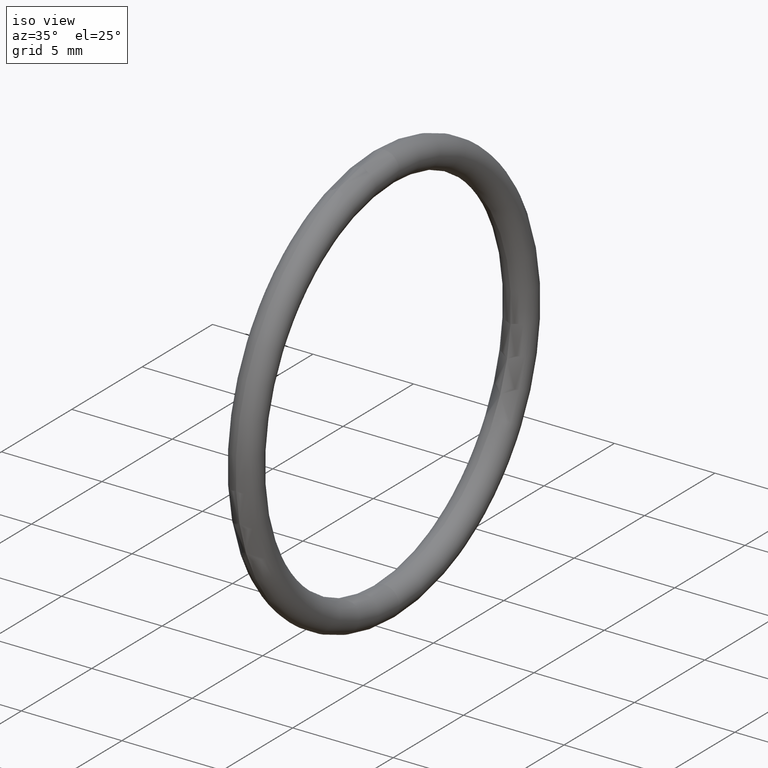
[diagram: clean part render]
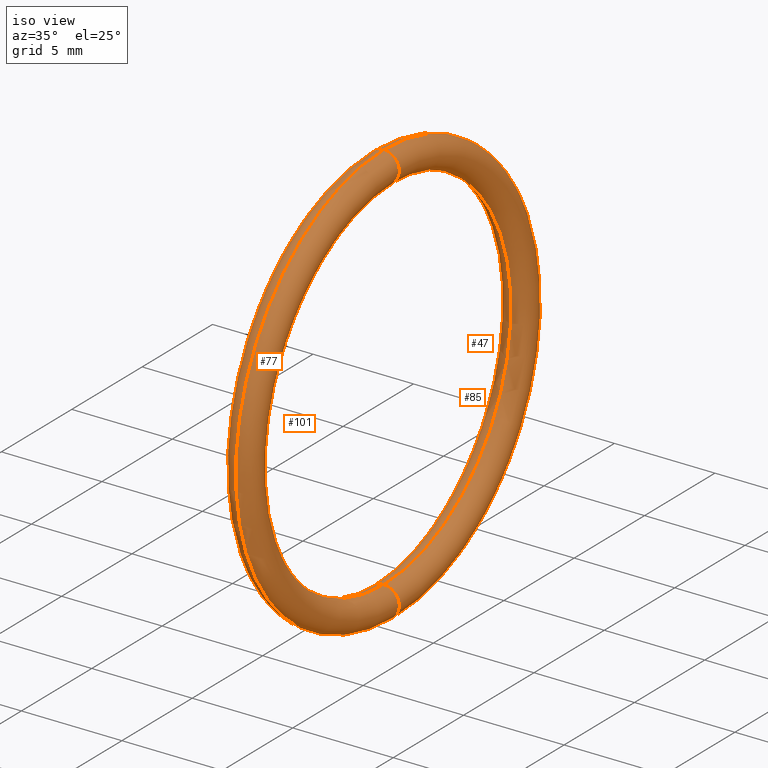
[diagram: same view with one multi-face feature highlighted, each face labeled with its STEP entity id]
A machine part, iso view. The highlighted faces form ONE feature: a constant-radius fillet chain: 4 tangent blend faces with common blend radius 0.762 mm. The faces share edges in the B-rep.
Their STEP definitions:
[1] entity #47 (Torus):
#5 = CARTESIAN_POINT ( 'NONE',  ( 0.1000000000000000600, 0.0000000000000000000, 0.3850000000000000100 ) ) ;
#6 = DIRECTION ( 'NONE',  ( 0.0000000000000000000, 0.0000000000000000000, 1.000000000000000000 ) ) ;
#7 = DIRECTION ( 'NONE',  ( -1.000000000000000000, 0.0000000000000000000, 0.0000000000000000000 ) ) ;
#8 = CARTESIAN_POINT ( 'NONE',  ( 0.1000000000000000600, 0.0000000000000000000, 0.0000000000000000000 ) ) ;
#9 = AXIS2_PLACEMENT_3D ( 'NONE', #8, #7, #6 ) ;
#10 = CIRCLE ( 'NONE', #9, 0.4150000000000000400 ) ;
#23 = DIRECTION ( 'NONE',  ( 0.0000000000000000000, -1.224646799147352200E-016, 1.000000000000000000 ) ) ;
#24 = DIRECTION ( 'NONE',  ( 0.0000000000000000000, 1.000000000000000000, 1.224646799147353200E-016 ) ) ;
#25 = CARTESIAN_POINT ( 'NONE',  ( 0.1000000000000000600, 4.714890176717309300E-017, -0.3850000000000000100 ) ) ;
#26 = AXIS2_PLACEMENT_3D ( 'NONE', #25, #24, #23 ) ;
#27 = CIRCLE ( 'NONE', #26, 0.03000000000000002300 ) ;
#28 = DIRECTION ( 'NONE',  ( 0.0000000000000000000, 0.0000000000000000000, -1.000000000000000000 ) ) ;
#29 = DIRECTION ( 'NONE',  ( 0.0000000000000000000, -1.000000000000000000, 0.0000000000000000000 ) ) ;
#30 = AXIS2_PLACEMENT_3D ( 'NONE', #5, #29, #28 ) ;
#31 = CIRCLE ( 'NONE', #30, 0.03000000000000002300 ) ;
#39 = DIRECTION ( 'NONE',  ( 0.0000000000000000000, 0.0000000000000000000, 1.000000000000000000 ) ) ;
#40 = DIRECTION ( 'NONE',  ( -1.000000000000000000, 0.0000000000000000000, 0.0000000000000000000 ) ) ;
#41 = AXIS2_PLACEMENT_3D ( 'NONE', #87, #40, #39 ) ;
#42 = TOROIDAL_SURFACE ( 'NONE', #41, 0.3850000000000000100, 0.03000000000000000900 ) ;
#43 = CARTESIAN_POINT ( 'NONE',  ( 0.1000000000000000600, 0.0000000000000000000, 0.3549999999999999800 ) ) ;
#44 = VERTEX_POINT ( 'NONE', #89 ) ;
#47 = ADVANCED_FACE ( 'NONE', ( #88 ), #42, .T. ) ;
#48 = ORIENTED_EDGE ( 'NONE', *, *, #91, .F. ) ;
#50 = VERTEX_POINT ( 'NONE', #43 ) ;
#52 = EDGE_LOOP ( 'NONE', ( #48, #92, #53, #54 ) ) ;
#53 = ORIENTED_EDGE ( 'NONE', *, *, #83, .T. ) ;
#54 = ORIENTED_EDGE ( 'NONE', *, *, #100, .T. ) ;
#60 = DIRECTION ( 'NONE',  ( 0.0000000000000000000, 0.0000000000000000000, 1.000000000000000000 ) ) ;
#61 = DIRECTION ( 'NONE',  ( -1.000000000000000000, 0.0000000000000000000, 0.0000000000000000000 ) ) ;
#62 = AXIS2_PLACEMENT_3D ( 'NONE', #70, #61, #60 ) ;
#63 = CIRCLE ( 'NONE', #62, 0.3549999999999999800 ) ;
#70 = CARTESIAN_POINT ( 'NONE',  ( 0.1000000000000000600, 0.0000000000000000000, 0.0000000000000000000 ) ) ;
#71 = CARTESIAN_POINT ( 'NONE',  ( 0.1000000000000000600, 4.347496136973103500E-017, -0.3549999999999999800 ) ) ;
#76 = CARTESIAN_POINT ( 'NONE',  ( 0.1000000000000000600, 5.082284216461516300E-017, -0.4150000000000000400 ) ) ;
#79 = VERTEX_POINT ( 'NONE', #76 ) ;
#80 = VERTEX_POINT ( 'NONE', #71 ) ;
#83 = EDGE_CURVE ( 'NONE', #50, #80, #63, .T. ) ;
#87 = CARTESIAN_POINT ( 'NONE',  ( 0.1000000000000000600, 0.0000000000000000000, 0.0000000000000000000 ) ) ;
#88 = FACE_OUTER_BOUND ( 'NONE', #52, .T. ) ;
#89 = CARTESIAN_POINT ( 'NONE',  ( 0.1000000000000000600, 0.0000000000000000000, 0.4150000000000000400 ) ) ;
#91 = EDGE_CURVE ( 'NONE', #44, #79, #10, .T. ) ;
#92 = ORIENTED_EDGE ( 'NONE', *, *, #97, .F. ) ;
#97 = EDGE_CURVE ( 'NONE', #50, #44, #31, .T. ) ;
#100 = EDGE_CURVE ( 'NONE', #80, #79, #27, .T. ) ;
[2] entity #101 (Torus):
#5 = CARTESIAN_POINT ( 'NONE',  ( 0.1000000000000000600, 0.0000000000000000000, 0.3850000000000000100 ) ) ;
#15 = AXIS2_PLACEMENT_3D ( 'NONE', #168, #116, #104 ) ;
#16 = CIRCLE ( 'NONE', #15, 0.4150000000000000400 ) ;
#17 = DIRECTION ( 'NONE',  ( 0.0000000000000000000, 0.0000000000000000000, 1.000000000000000000 ) ) ;
#18 = DIRECTION ( 'NONE',  ( -1.000000000000000000, 0.0000000000000000000, 0.0000000000000000000 ) ) ;
#19 = CARTESIAN_POINT ( 'NONE',  ( 0.1000000000000000600, 0.0000000000000000000, 0.0000000000000000000 ) ) ;
#20 = AXIS2_PLACEMENT_3D ( 'NONE', #19, #18, #17 ) ;
#21 = TOROIDAL_SURFACE ( 'NONE', #20, 0.3850000000000000100, 0.03000000000000000900 ) ;
#22 = FACE_OUTER_BOUND ( 'NONE', #55, .T. ) ;
#23 = DIRECTION ( 'NONE',  ( 0.0000000000000000000, -1.224646799147352200E-016, 1.000000000000000000 ) ) ;
#24 = DIRECTION ( 'NONE',  ( 0.0000000000000000000, 1.000000000000000000, 1.224646799147353200E-016 ) ) ;
#25 = CARTESIAN_POINT ( 'NONE',  ( 0.1000000000000000600, 4.714890176717309300E-017, -0.3850000000000000100 ) ) ;
#26 = AXIS2_PLACEMENT_3D ( 'NONE', #25, #24, #23 ) ;
#27 = CIRCLE ( 'NONE', #26, 0.03000000000000002300 ) ;
#28 = DIRECTION ( 'NONE',  ( 0.0000000000000000000, 0.0000000000000000000, -1.000000000000000000 ) ) ;
#29 = DIRECTION ( 'NONE',  ( 0.0000000000000000000, -1.000000000000000000, 0.0000000000000000000 ) ) ;
#30 = AXIS2_PLACEMENT_3D ( 'NONE', #5, #29, #28 ) ;
#31 = CIRCLE ( 'NONE', #30, 0.03000000000000002300 ) ;
#33 = DIRECTION ( 'NONE',  ( 0.0000000000000000000, 0.0000000000000000000, 1.000000000000000000 ) ) ;
#34 = DIRECTION ( 'NONE',  ( -1.000000000000000000, 0.0000000000000000000, 0.0000000000000000000 ) ) ;
#35 = CARTESIAN_POINT ( 'NONE',  ( 0.1000000000000000600, 0.0000000000000000000, 0.0000000000000000000 ) ) ;
#36 = AXIS2_PLACEMENT_3D ( 'NONE', #35, #34, #33 ) ;
#37 = CIRCLE ( 'NONE', #36, 0.3549999999999999800 ) ;
#43 = CARTESIAN_POINT ( 'NONE',  ( 0.1000000000000000600, 0.0000000000000000000, 0.3549999999999999800 ) ) ;
#44 = VERTEX_POINT ( 'NONE', #89 ) ;
#45 = ORIENTED_EDGE ( 'NONE', *, *, #100, .F. ) ;
#46 = ORIENTED_EDGE ( 'NONE', *, *, #57, .T. ) ;
#50 = VERTEX_POINT ( 'NONE', #43 ) ;
#55 = EDGE_LOOP ( 'NONE', ( #102, #45, #46, #98 ) ) ;
#57 = EDGE_CURVE ( 'NONE', #80, #50, #37, .T. ) ;
#71 = CARTESIAN_POINT ( 'NONE',  ( 0.1000000000000000600, 4.347496136973103500E-017, -0.3549999999999999800 ) ) ;
#76 = CARTESIAN_POINT ( 'NONE',  ( 0.1000000000000000600, 5.082284216461516300E-017, -0.4150000000000000400 ) ) ;
#79 = VERTEX_POINT ( 'NONE', #76 ) ;
#80 = VERTEX_POINT ( 'NONE', #71 ) ;
#89 = CARTESIAN_POINT ( 'NONE',  ( 0.1000000000000000600, 0.0000000000000000000, 0.4150000000000000400 ) ) ;
#97 = EDGE_CURVE ( 'NONE', #50, #44, #31, .T. ) ;
#98 = ORIENTED_EDGE ( 'NONE', *, *, #97, .T. ) ;
#100 = EDGE_CURVE ( 'NONE', #80, #79, #27, .T. ) ;
#101 = ADVANCED_FACE ( 'NONE', ( #22 ), #21, .T. ) ;
#102 = ORIENTED_EDGE ( 'NONE', *, *, #103, .F. ) ;
#103 = EDGE_CURVE ( 'NONE', #79, #44, #16, .T. ) ;
#104 = DIRECTION ( 'NONE',  ( 0.0000000000000000000, 0.0000000000000000000, 1.000000000000000000 ) ) ;
#116 = DIRECTION ( 'NONE',  ( -1.000000000000000000, 0.0000000000000000000, 0.0000000000000000000 ) ) ;
#168 = CARTESIAN_POINT ( 'NONE',  ( 0.1000000000000000600, 0.0000000000000000000, 0.0000000000000000000 ) ) ;
[3] entity #77 (Torus):
#1 = DIRECTION ( 'NONE',  ( 0.0000000000000000000, 0.0000000000000000000, -1.000000000000000000 ) ) ;
#2 = DIRECTION ( 'NONE',  ( 0.0000000000000000000, -1.000000000000000000, 0.0000000000000000000 ) ) ;
#3 = AXIS2_PLACEMENT_3D ( 'NONE', #11, #2, #1 ) ;
#4 = CIRCLE ( 'NONE', #3, 0.03000000000000002300 ) ;
#11 = CARTESIAN_POINT ( 'NONE',  ( 0.1000000000000000600, 0.0000000000000000000, 0.3850000000000000100 ) ) ;
#15 = AXIS2_PLACEMENT_3D ( 'NONE', #168, #116, #104 ) ;
#16 = CIRCLE ( 'NONE', #15, 0.4150000000000000400 ) ;
#32 = FACE_OUTER_BOUND ( 'NONE', #78, .T. ) ;
#33 = DIRECTION ( 'NONE',  ( 0.0000000000000000000, 0.0000000000000000000, 1.000000000000000000 ) ) ;
#34 = DIRECTION ( 'NONE',  ( -1.000000000000000000, 0.0000000000000000000, 0.0000000000000000000 ) ) ;
#35 = CARTESIAN_POINT ( 'NONE',  ( 0.1000000000000000600, 0.0000000000000000000, 0.0000000000000000000 ) ) ;
#36 = AXIS2_PLACEMENT_3D ( 'NONE', #35, #34, #33 ) ;
#37 = CIRCLE ( 'NONE', #36, 0.3549999999999999800 ) ;
#38 = CARTESIAN_POINT ( 'NONE',  ( 0.1000000000000000600, 0.0000000000000000000, 0.0000000000000000000 ) ) ;
#43 = CARTESIAN_POINT ( 'NONE',  ( 0.1000000000000000600, 0.0000000000000000000, 0.3549999999999999800 ) ) ;
#44 = VERTEX_POINT ( 'NONE', #89 ) ;
#50 = VERTEX_POINT ( 'NONE', #43 ) ;
#56 = ORIENTED_EDGE ( 'NONE', *, *, #57, .F. ) ;
#57 = EDGE_CURVE ( 'NONE', #80, #50, #37, .T. ) ;
#65 = DIRECTION ( 'NONE',  ( 0.0000000000000000000, -1.224646799147352200E-016, 1.000000000000000000 ) ) ;
#66 = DIRECTION ( 'NONE',  ( 0.0000000000000000000, 1.000000000000000000, 1.224646799147353200E-016 ) ) ;
#67 = AXIS2_PLACEMENT_3D ( 'NONE', #68, #66, #65 ) ;
#68 = CARTESIAN_POINT ( 'NONE',  ( 0.1000000000000000600, 4.714890176717309300E-017, -0.3850000000000000100 ) ) ;
#69 = CIRCLE ( 'NONE', #67, 0.03000000000000002300 ) ;
#71 = CARTESIAN_POINT ( 'NONE',  ( 0.1000000000000000600, 4.347496136973103500E-017, -0.3549999999999999800 ) ) ;
#72 = DIRECTION ( 'NONE',  ( 0.0000000000000000000, 0.0000000000000000000, 1.000000000000000000 ) ) ;
#73 = DIRECTION ( 'NONE',  ( -1.000000000000000000, 0.0000000000000000000, 0.0000000000000000000 ) ) ;
#74 = AXIS2_PLACEMENT_3D ( 'NONE', #38, #73, #72 ) ;
#75 = TOROIDAL_SURFACE ( 'NONE', #74, 0.3850000000000000100, 0.03000000000000000900 ) ;
#76 = CARTESIAN_POINT ( 'NONE',  ( 0.1000000000000000600, 5.082284216461516300E-017, -0.4150000000000000400 ) ) ;
#77 = ADVANCED_FACE ( 'NONE', ( #32 ), #75, .T. ) ;
#78 = EDGE_LOOP ( 'NONE', ( #93, #96, #94, #56 ) ) ;
#79 = VERTEX_POINT ( 'NONE', #76 ) ;
#80 = VERTEX_POINT ( 'NONE', #71 ) ;
#81 = EDGE_CURVE ( 'NONE', #79, #80, #69, .T. ) ;
#89 = CARTESIAN_POINT ( 'NONE',  ( 0.1000000000000000600, 0.0000000000000000000, 0.4150000000000000400 ) ) ;
#93 = ORIENTED_EDGE ( 'NONE', *, *, #81, .F. ) ;
#94 = ORIENTED_EDGE ( 'NONE', *, *, #95, .T. ) ;
#95 = EDGE_CURVE ( 'NONE', #44, #50, #4, .T. ) ;
#96 = ORIENTED_EDGE ( 'NONE', *, *, #103, .T. ) ;
#103 = EDGE_CURVE ( 'NONE', #79, #44, #16, .T. ) ;
#104 = DIRECTION ( 'NONE',  ( 0.0000000000000000000, 0.0000000000000000000, 1.000000000000000000 ) ) ;
#116 = DIRECTION ( 'NONE',  ( -1.000000000000000000, 0.0000000000000000000, 0.0000000000000000000 ) ) ;
#168 = CARTESIAN_POINT ( 'NONE',  ( 0.1000000000000000600, 0.0000000000000000000, 0.0000000000000000000 ) ) ;
[4] entity #85 (Torus):
#1 = DIRECTION ( 'NONE',  ( 0.0000000000000000000, 0.0000000000000000000, -1.000000000000000000 ) ) ;
#2 = DIRECTION ( 'NONE',  ( 0.0000000000000000000, -1.000000000000000000, 0.0000000000000000000 ) ) ;
#3 = AXIS2_PLACEMENT_3D ( 'NONE', #11, #2, #1 ) ;
#4 = CIRCLE ( 'NONE', #3, 0.03000000000000002300 ) ;
#6 = DIRECTION ( 'NONE',  ( 0.0000000000000000000, 0.0000000000000000000, 1.000000000000000000 ) ) ;
#7 = DIRECTION ( 'NONE',  ( -1.000000000000000000, 0.0000000000000000000, 0.0000000000000000000 ) ) ;
#8 = CARTESIAN_POINT ( 'NONE',  ( 0.1000000000000000600, 0.0000000000000000000, 0.0000000000000000000 ) ) ;
#9 = AXIS2_PLACEMENT_3D ( 'NONE', #8, #7, #6 ) ;
#10 = CIRCLE ( 'NONE', #9, 0.4150000000000000400 ) ;
#11 = CARTESIAN_POINT ( 'NONE',  ( 0.1000000000000000600, 0.0000000000000000000, 0.3850000000000000100 ) ) ;
#12 = DIRECTION ( 'NONE',  ( 0.0000000000000000000, 0.0000000000000000000, 1.000000000000000000 ) ) ;
#13 = AXIS2_PLACEMENT_3D ( 'NONE', #58, #59, #12 ) ;
#14 = TOROIDAL_SURFACE ( 'NONE', #13, 0.3850000000000000100, 0.03000000000000000900 ) ;
#43 = CARTESIAN_POINT ( 'NONE',  ( 0.1000000000000000600, 0.0000000000000000000, 0.3549999999999999800 ) ) ;
#44 = VERTEX_POINT ( 'NONE', #89 ) ;
#50 = VERTEX_POINT ( 'NONE', #43 ) ;
#51 = ORIENTED_EDGE ( 'NONE', *, *, #81, .T. ) ;
#58 = CARTESIAN_POINT ( 'NONE',  ( 0.1000000000000000600, 0.0000000000000000000, 0.0000000000000000000 ) ) ;
#59 = DIRECTION ( 'NONE',  ( -1.000000000000000000, 0.0000000000000000000, 0.0000000000000000000 ) ) ;
#60 = DIRECTION ( 'NONE',  ( 0.0000000000000000000, 0.0000000000000000000, 1.000000000000000000 ) ) ;
#61 = DIRECTION ( 'NONE',  ( -1.000000000000000000, 0.0000000000000000000, 0.0000000000000000000 ) ) ;
#62 = AXIS2_PLACEMENT_3D ( 'NONE', #70, #61, #60 ) ;
#63 = CIRCLE ( 'NONE', #62, 0.3549999999999999800 ) ;
#64 = FACE_OUTER_BOUND ( 'NONE', #86, .T. ) ;
#65 = DIRECTION ( 'NONE',  ( 0.0000000000000000000, -1.224646799147352200E-016, 1.000000000000000000 ) ) ;
#66 = DIRECTION ( 'NONE',  ( 0.0000000000000000000, 1.000000000000000000, 1.224646799147353200E-016 ) ) ;
#67 = AXIS2_PLACEMENT_3D ( 'NONE', #68, #66, #65 ) ;
#68 = CARTESIAN_POINT ( 'NONE',  ( 0.1000000000000000600, 4.714890176717309300E-017, -0.3850000000000000100 ) ) ;
#69 = CIRCLE ( 'NONE', #67, 0.03000000000000002300 ) ;
#70 = CARTESIAN_POINT ( 'NONE',  ( 0.1000000000000000600, 0.0000000000000000000, 0.0000000000000000000 ) ) ;
#71 = CARTESIAN_POINT ( 'NONE',  ( 0.1000000000000000600, 4.347496136973103500E-017, -0.3549999999999999800 ) ) ;
#76 = CARTESIAN_POINT ( 'NONE',  ( 0.1000000000000000600, 5.082284216461516300E-017, -0.4150000000000000400 ) ) ;
#79 = VERTEX_POINT ( 'NONE', #76 ) ;
#80 = VERTEX_POINT ( 'NONE', #71 ) ;
#81 = EDGE_CURVE ( 'NONE', #79, #80, #69, .T. ) ;
#82 = ORIENTED_EDGE ( 'NONE', *, *, #83, .F. ) ;
#83 = EDGE_CURVE ( 'NONE', #50, #80, #63, .T. ) ;
#84 = ORIENTED_EDGE ( 'NONE', *, *, #95, .F. ) ;
#85 = ADVANCED_FACE ( 'NONE', ( #64 ), #14, .T. ) ;
#86 = EDGE_LOOP ( 'NONE', ( #84, #90, #51, #82 ) ) ;
#89 = CARTESIAN_POINT ( 'NONE',  ( 0.1000000000000000600, 0.0000000000000000000, 0.4150000000000000400 ) ) ;
#90 = ORIENTED_EDGE ( 'NONE', *, *, #91, .T. ) ;
#91 = EDGE_CURVE ( 'NONE', #44, #79, #10, .T. ) ;
#95 = EDGE_CURVE ( 'NONE', #44, #50, #4, .T. ) ;